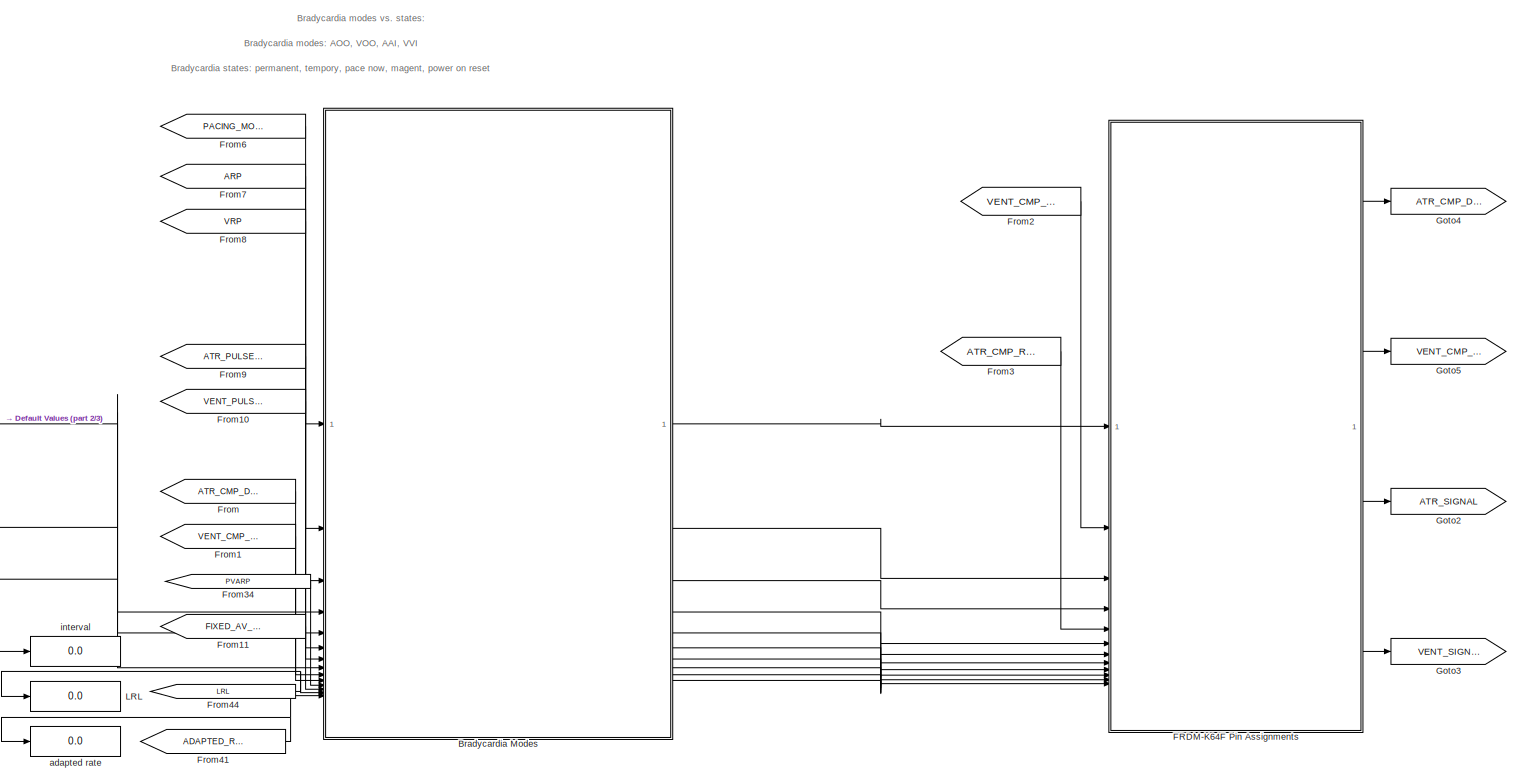
[diagram: root canvas - part 1/3, top right region]
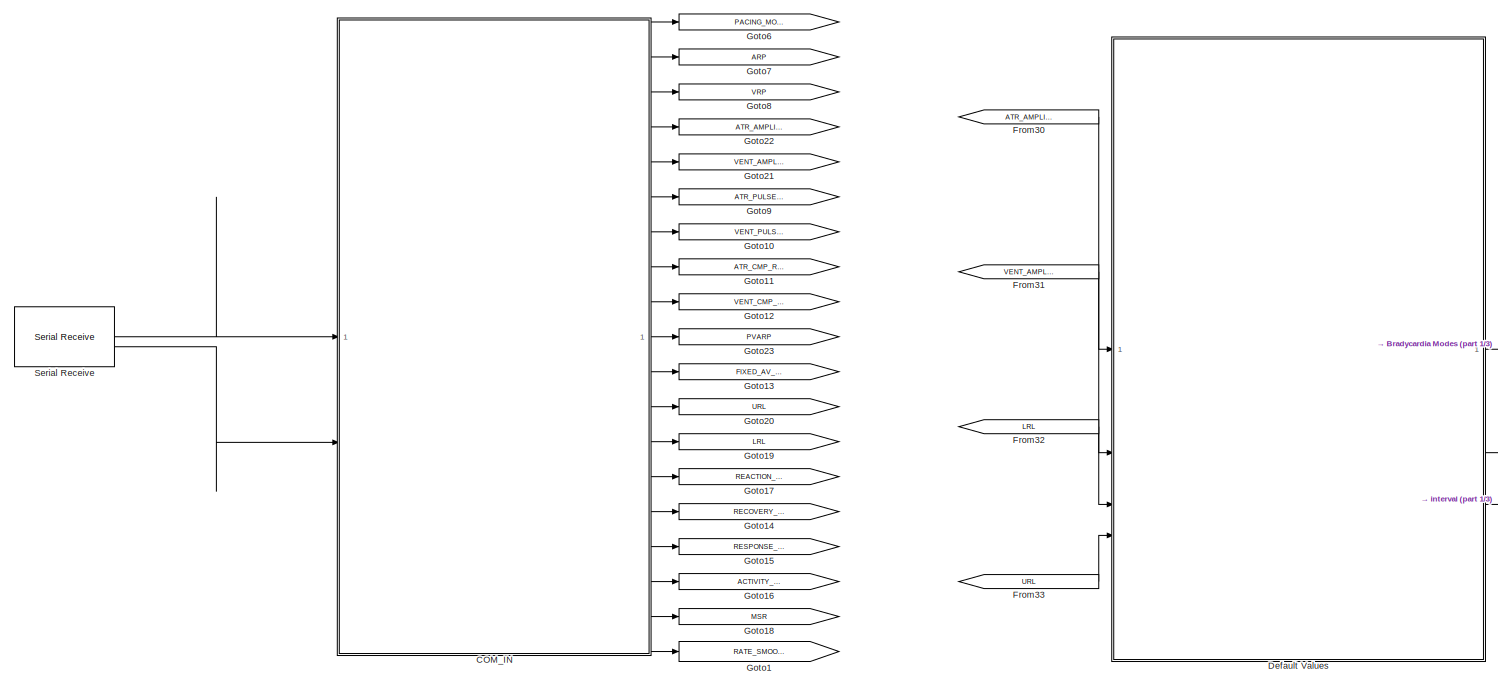
[diagram: root canvas - part 2/3, top left region]
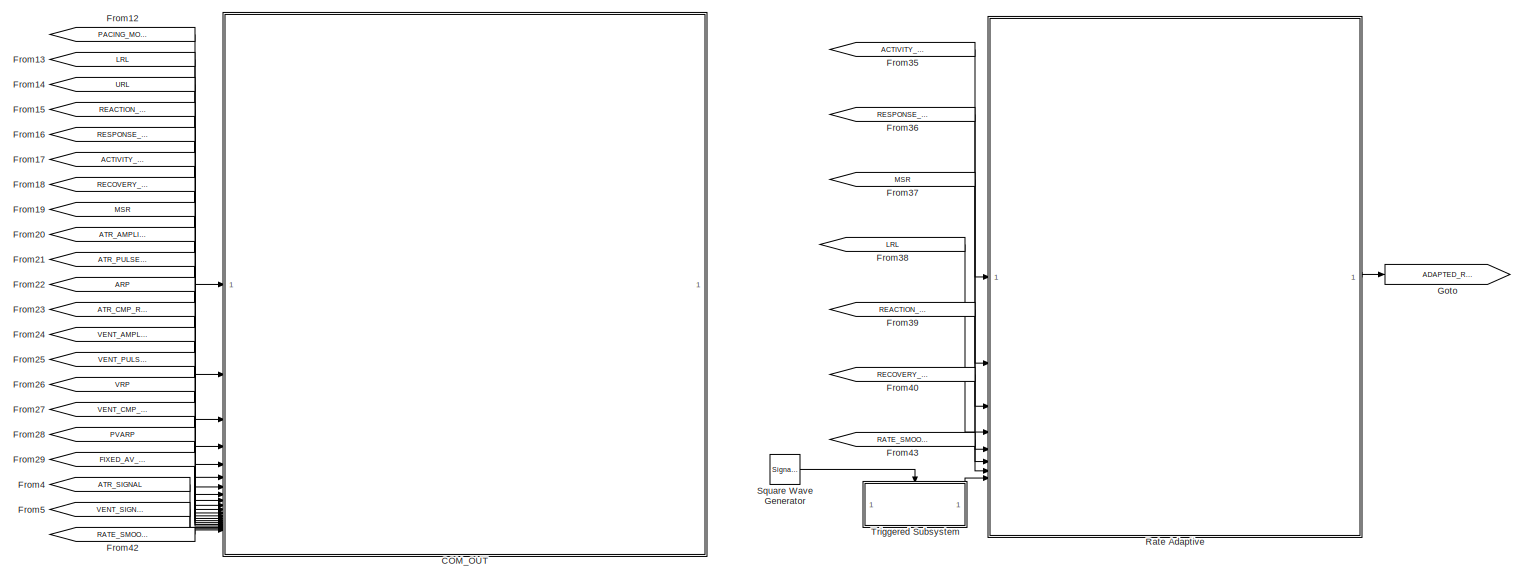
[diagram: root canvas - part 3/3, bottom center region]
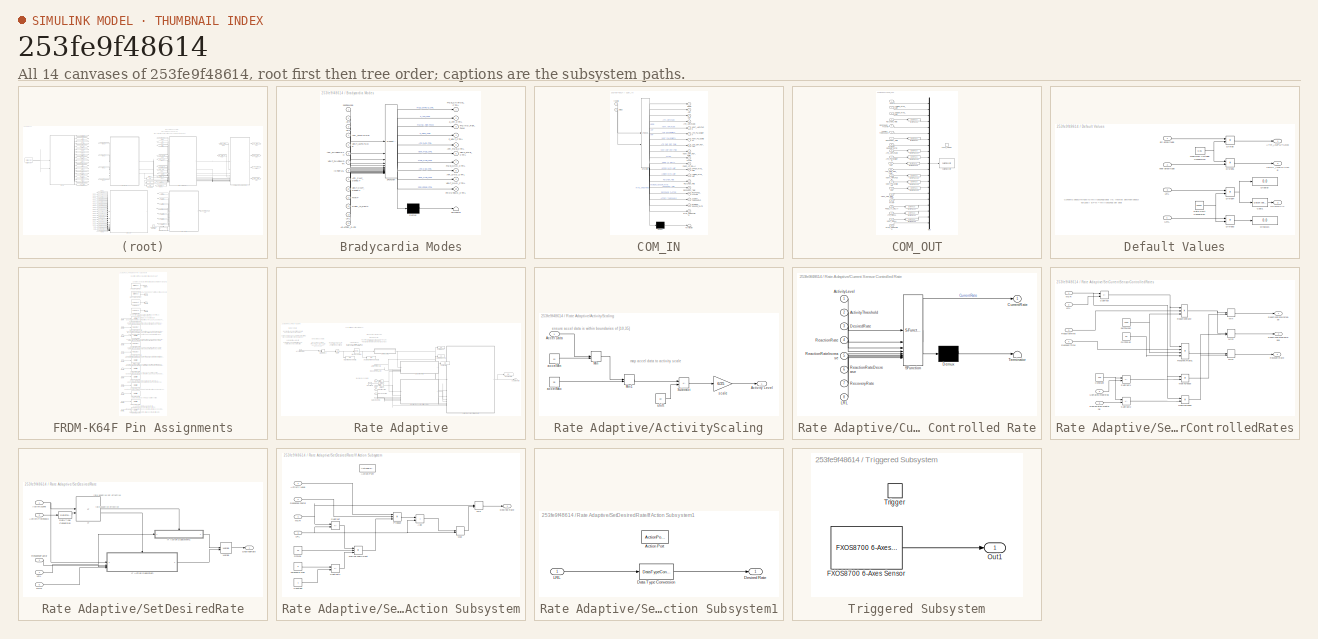
[diagram: thumbnail index - all 14 canvases of the model, root first then tree order]
MODEL slx_253fe9f48614
KIND model
CONFIG AbsTol = auto
CONFIG EnableMultiTasking = on
CONFIG FixedStep = 1e-3
CONFIG MaxStep = auto
CONFIG MinStep = auto
CONFIG RelTol = 1e-3
CONFIG SampleTimeConstraint = Unconstrained
CONFIG SolverName = FixedStepAuto
CONFIG StartTime = 0.0
CONFIG StopTime = 10.0
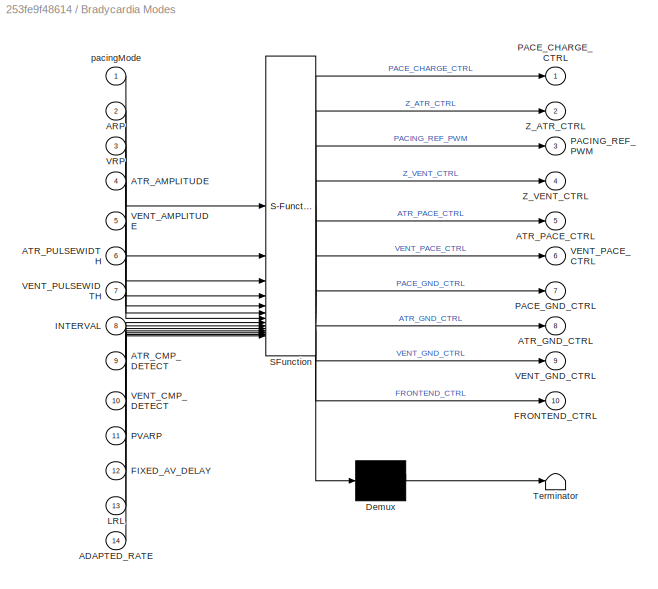
BLOCK [SubSystem] Bradycardia Modes
  ErrorFcn = Stateflow.Translate.translate
  PermitHierarchicalResolution = ExplicitOnly
  SFBlockType = Chart
  TreatAsAtomicUnit = on
BLOCK [Demux] Bradycardia Modes/ Demux 
  Outputs = 1
BLOCK [S-Function] Bradycardia Modes/ SFunction 
  EnableBusSupport = off
  FunctionName = sf_sfun
  PortCounts = [14 11]
  SFcnIsStateOwnerBlock = off
  SFunctionDeploymentMode = off
  Tag = Stateflow S-Function 1
BLOCK [Terminator] Bradycardia Modes/ Terminator 
BLOCK [Inport] Bradycardia Modes/ADAPTED_RATE
  Port = 14
BLOCK [Inport] Bradycardia Modes/ARP
  Port = 2
BLOCK [Inport] Bradycardia Modes/ATR_AMPLITUDE
  Port = 4
BLOCK [Inport] Bradycardia Modes/ATR_CMP_DETECT
  Port = 9
BLOCK [Outport] Bradycardia Modes/ATR_GND_CTRL
  Port = 8
BLOCK [Outport] Bradycardia Modes/ATR_PACE_CTRL
  Port = 5
BLOCK [Inport] Bradycardia Modes/ATR_PULSEWIDTH
  Port = 6
BLOCK [Inport] Bradycardia Modes/FIXED_AV_DELAY
  Port = 12
BLOCK [Outport] Bradycardia Modes/FRONTEND_CTRL
  Port = 10
BLOCK [Inport] Bradycardia Modes/INTERVAL
  Port = 8
BLOCK [Inport] Bradycardia Modes/LRL
  Port = 13
BLOCK [Outport] Bradycardia Modes/PACE_CHARGE_CTRL
BLOCK [Outport] Bradycardia Modes/PACE_GND_CTRL
  Port = 7
BLOCK [Outport] Bradycardia Modes/PACING_REF_PWM
  Port = 3
BLOCK [Inport] Bradycardia Modes/PVARP
  Port = 11
BLOCK [Inport] Bradycardia Modes/VENT_AMPLITUDE
  Port = 5
BLOCK [Inport] Bradycardia Modes/VENT_CMP_DETECT
  Port = 10
BLOCK [Outport] Bradycardia Modes/VENT_GND_CTRL
  Port = 9
BLOCK [Outport] Bradycardia Modes/VENT_PACE_CTRL
  Port = 6
BLOCK [Inport] Bradycardia Modes/VENT_PULSEWIDTH
  Port = 7
BLOCK [Inport] Bradycardia Modes/VRP
  Port = 3
BLOCK [Outport] Bradycardia Modes/Z_ATR_CTRL
  Port = 2
BLOCK [Outport] Bradycardia Modes/Z_VENT_CTRL
  Port = 4
BLOCK [Inport] Bradycardia Modes/pacingMode
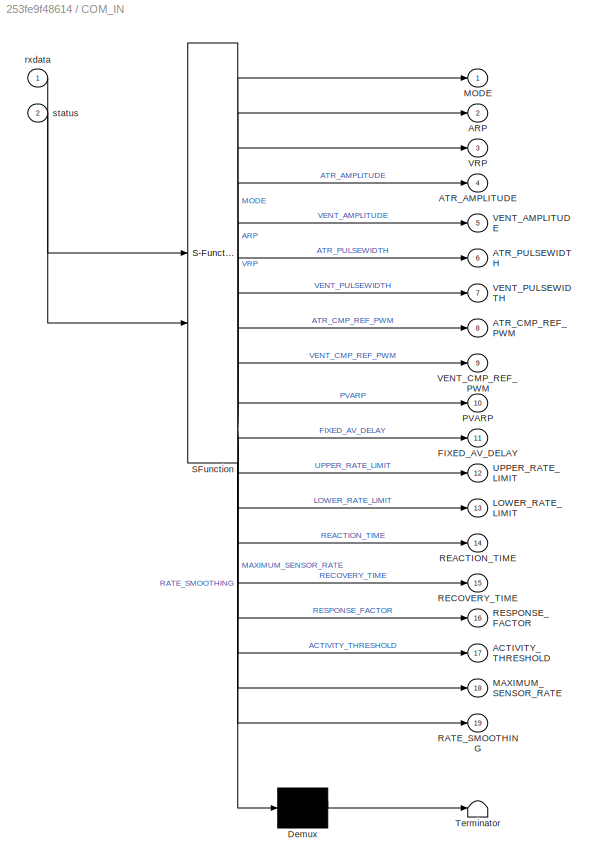
BLOCK [SubSystem] COM_IN
  ErrorFcn = Stateflow.Translate.translate
  PermitHierarchicalResolution = ExplicitOnly
  SFBlockType = Chart
  TreatAsAtomicUnit = on
BLOCK [Demux] COM_IN/ Demux 
  Outputs = 1
BLOCK [S-Function] COM_IN/ SFunction 
  EnableBusSupport = off
  FunctionName = sf_sfun
  PortCounts = [2 20]
  SFcnIsStateOwnerBlock = off
  SFunctionDeploymentMode = off
  Tag = Stateflow S-Function 4
BLOCK [Terminator] COM_IN/ Terminator 
BLOCK [Outport] COM_IN/ACTIVITY_THRESHOLD
  Port = 17
BLOCK [Outport] COM_IN/ARP
  Port = 2
BLOCK [Outport] COM_IN/ATR_AMPLITUDE
  Port = 4
BLOCK [Outport] COM_IN/ATR_CMP_REF_PWM
  Port = 8
BLOCK [Outport] COM_IN/ATR_PULSEWIDTH
  Port = 6
BLOCK [Outport] COM_IN/FIXED_AV_DELAY
  Port = 11
BLOCK [Outport] COM_IN/LOWER_RATE_LIMIT
  Port = 13
BLOCK [Outport] COM_IN/MAXIMUM_SENSOR_RATE
  Port = 18
BLOCK [Outport] COM_IN/MODE
BLOCK [Outport] COM_IN/PVARP
  Port = 10
BLOCK [Outport] COM_IN/RATE_SMOOTHING
  Port = 19
BLOCK [Outport] COM_IN/REACTION_TIME
  Port = 14
BLOCK [Outport] COM_IN/RECOVERY_TIME
  Port = 15
BLOCK [Outport] COM_IN/RESPONSE_FACTOR
  Port = 16
BLOCK [Outport] COM_IN/UPPER_RATE_LIMIT
  Port = 12
BLOCK [Outport] COM_IN/VENT_AMPLITUDE
  Port = 5
BLOCK [Outport] COM_IN/VENT_CMP_REF_PWM
  Port = 9
BLOCK [Outport] COM_IN/VENT_PULSEWIDTH
  Port = 7
BLOCK [Outport] COM_IN/VRP
  Port = 3
BLOCK [Inport] COM_IN/rxdata
BLOCK [Inport] COM_IN/status
  Port = 2
BLOCK [SubSystem] COM_OUT
  TreatAsAtomicUnit = on
BLOCK [Inport] COM_OUT/ACTIVITY_THRESHOLD
  Port = 6
BLOCK [Inport] COM_OUT/ARP
  Port = 11
BLOCK [Inport] COM_OUT/ATR_AMPLITUDE
  Port = 9
BLOCK [Inport] COM_OUT/ATR_CMP_REF_PWM
  Port = 12
BLOCK [Inport] COM_OUT/ATR_PULSEWIDTH
  Port = 10
BLOCK [Inport] COM_OUT/ATR_SIGNAL
  Port = 19
BLOCK [Reference] COM_OUT/Byte Pack1  REF=etargetslib/Byte Pack
  SourceBlock = etargetslib/Byte Pack
  SourceType = Byte pack
BLOCK [Reference] COM_OUT/Byte Pack14  REF=etargetslib/Byte Pack
  SourceBlock = etargetslib/Byte Pack
  SourceType = Byte pack
BLOCK [Reference] COM_OUT/Byte Pack15  REF=etargetslib/Byte Pack
  SourceBlock = etargetslib/Byte Pack
  SourceType = Byte pack
BLOCK [Reference] COM_OUT/Byte Pack16  REF=etargetslib/Byte Pack
  SourceBlock = etargetslib/Byte Pack
  SourceType = Byte pack
BLOCK [Reference] COM_OUT/Byte Pack18  REF=etargetslib/Byte Pack
  SourceBlock = etargetslib/Byte Pack
  SourceType = Byte pack
BLOCK [Reference] COM_OUT/Byte Pack19  REF=etargetslib/Byte Pack
  SourceBlock = etargetslib/Byte Pack
  SourceType = Byte pack
BLOCK [Reference] COM_OUT/Byte Pack2  REF=etargetslib/Byte Pack
  SourceBlock = etargetslib/Byte Pack
  SourceType = Byte pack
BLOCK [Reference] COM_OUT/Byte Pack20  REF=etargetslib/Byte Pack
  SourceBlock = etargetslib/Byte Pack
  SourceType = Byte pack
BLOCK [Reference] COM_OUT/Byte Pack3  REF=etargetslib/Byte Pack
  SourceBlock = etargetslib/Byte Pack
  SourceType = Byte pack
BLOCK [Reference] COM_OUT/Byte Pack4  REF=etargetslib/Byte Pack
  SourceBlock = etargetslib/Byte Pack
  SourceType = Byte pack
BLOCK [Reference] COM_OUT/Byte Pack7  REF=etargetslib/Byte Pack
  SourceBlock = etargetslib/Byte Pack
  SourceType = Byte pack
BLOCK [Inport] COM_OUT/FIXED_AV_DELAY
  Port = 18
BLOCK [Inport] COM_OUT/LOWER_RATE_LIMIT
  Port = 2
BLOCK [Inport] COM_OUT/MAXIMUM_SENSOR_RATE
  Port = 8
BLOCK [Inport] COM_OUT/MODE
BLOCK [Mux] COM_OUT/Mux
  DisplayOption = bar
  Inputs = 21
BLOCK [Inport] COM_OUT/PVARP
  Port = 17
BLOCK [Inport] COM_OUT/RATE_SMOOTHING
  Port = 21
BLOCK [Inport] COM_OUT/REACTION_TIME
  Port = 4
BLOCK [Inport] COM_OUT/RECOVERY_TIME
  Port = 7
BLOCK [Inport] COM_OUT/RESPONSE_FACTOR
  Port = 5
BLOCK [Reference] COM_OUT/Serial Transmit  REF=frdmk64flib/Serial Transmit
  SourceBlock = frdmk64flib/Serial Transmit
  SourceType = freedomk64f.SCIWrite
BLOCK [Inport] COM_OUT/UPPER_RATE_LIMIT
  Port = 3
BLOCK [Inport] COM_OUT/VENT_AMPLITUDE
  Port = 13
BLOCK [Inport] COM_OUT/VENT_CMP_REF_PWM
  Port = 16
BLOCK [Inport] COM_OUT/VENT_PULSEWIDTH
  Port = 14
BLOCK [Inport] COM_OUT/VENT_SIGNAL
  Port = 20
BLOCK [Inport] COM_OUT/VRP
  Port = 15
BLOCK [TriggerPort] COM_OUT/send_params
  FunctionName = send_params
  IsSimulinkFunction = on
  StatesWhenEnabling = held
  TriggerType = function-call
  VariantControl = Variant
BLOCK [SubSystem] Default Values
BLOCK [Outport] Default Values/ATR_AMPLITUDE
BLOCK [DataTypeConversion] Default Values/Cast1
  LockScale = on
  OutDataTypeStr = uint16
  RndMeth = Floor
  SaturateOnIntegerOverflow = off
BLOCK [Display] Default Values/Display
  Decimation = 1
BLOCK [Display] Default Values/Display1
  Decimation = 1
BLOCK [Product] Default Values/Divide
  Inputs = */
BLOCK [Product] Default Values/Divide1
  Inputs = /*
BLOCK [Product] Default Values/Divide3
  Inputs = */
BLOCK [Product] Default Values/Divide4
  Inputs = /*
BLOCK [Outport] Default Values/INTERVAL
  Port = 3
BLOCK [Inport] Default Values/LRL
  Port = 3
BLOCK [Constant] Default Values/Maximum Voltage Conversion
  Value = 0.05
BLOCK [Constant] Default Values/Rate Limit Conversion
  Value = 60000
BLOCK [Inport] Default Values/URL
  Port = 4
BLOCK [Outport] Default Values/VENT_AMPLITUDE
  Port = 2
BLOCK [Inport] Default Values/atr-amplitude
BLOCK [Inport] Default Values/vent-amplitude
  Port = 2
BLOCK [SubSystem] FRDM-K64F Pin Assignments
BLOCK [Reference] FRDM-K64F Pin Assignments/ATR_CMP_DETECT  REF=frdmk64flib/Digital Read
  SourceBlock = frdmk64flib/Digital Read
  SourceType = freedomk64f.DigitalRead
BLOCK [Reference] FRDM-K64F Pin Assignments/ATR_CMP_REF_PWM  REF=frdmk64flib/PWM Output
  SourceBlock = frdmk64flib/PWM Output
  SourceType = freedomk64f.PWMOutput
BLOCK [Reference] FRDM-K64F Pin Assignments/ATR_GND_CTRL  REF=frdmk64flib/Digital Write
  SourceBlock = frdmk64flib/Digital Write
  SourceType = freedomk64f.DigitalWrite
BLOCK [Reference] FRDM-K64F Pin Assignments/ATR_PACE_CTRL  REF=frdmk64flib/Digital Write
  SourceBlock = frdmk64flib/Digital Write
  SourceType = freedomk64f.DigitalWrite
BLOCK [Reference] FRDM-K64F Pin Assignments/Analog Input  REF=frdmk64flib/Analog Input
  SourceBlock = frdmk64flib/Analog Input
  SourceType = freedomk64f.AnalogInput
BLOCK [Reference] FRDM-K64F Pin Assignments/Analog Input1  REF=frdmk64flib/Analog Input
  SourceBlock = frdmk64flib/Analog Input
  SourceType = freedomk64f.AnalogInput
BLOCK [Reference] FRDM-K64F Pin Assignments/FRONTEND_CTRL  REF=frdmk64flib/Digital Write
  SourceBlock = frdmk64flib/Digital Write
  SourceType = freedomk64f.DigitalWrite
BLOCK [Inport] FRDM-K64F Pin Assignments/Inport
BLOCK [Inport] FRDM-K64F Pin Assignments/Inport1
  Port = 2
BLOCK [Inport] FRDM-K64F Pin Assignments/Inport10
  Port = 11
BLOCK [Inport] FRDM-K64F Pin Assignments/Inport11
  Port = 12
BLOCK [Inport] FRDM-K64F Pin Assignments/Inport2
  Port = 3
BLOCK [Inport] FRDM-K64F Pin Assignments/Inport3
  Port = 4
BLOCK [Inport] FRDM-K64F Pin Assignments/Inport4
  Port = 5
BLOCK [Inport] FRDM-K64F Pin Assignments/Inport5
  Port = 6
BLOCK [Inport] FRDM-K64F Pin Assignments/Inport6
  Port = 7
BLOCK [Inport] FRDM-K64F Pin Assignments/Inport7
  Port = 8
BLOCK [Inport] FRDM-K64F Pin Assignments/Inport8
  Port = 9
BLOCK [Inport] FRDM-K64F Pin Assignments/Inport9
  Port = 10
BLOCK [Outport] FRDM-K64F Pin Assignments/Outport
BLOCK [Outport] FRDM-K64F Pin Assignments/Outport1
  Port = 2
BLOCK [Outport] FRDM-K64F Pin Assignments/Outport2
  Port = 3
BLOCK [Outport] FRDM-K64F Pin Assignments/Outport3
  Port = 4
BLOCK [Reference] FRDM-K64F Pin Assignments/PACE_CHARGE_CTRL  REF=frdmk64flib/Digital Write
  SourceBlock = frdmk64flib/Digital Write
  SourceType = freedomk64f.DigitalWrite
BLOCK [Reference] FRDM-K64F Pin Assignments/PACE_GND_CTRL  REF=frdmk64flib/Digital Write
  SourceBlock = frdmk64flib/Digital Write
  SourceType = freedomk64f.DigitalWrite
BLOCK [Reference] FRDM-K64F Pin Assignments/PACING_REF_PWM  REF=frdmk64flib/PWM Output
  SourceBlock = frdmk64flib/PWM Output
  SourceType = freedomk64f.PWMOutput
BLOCK [Reference] FRDM-K64F Pin Assignments/VENT_CMP_DETECT  REF=frdmk64flib/Digital Read
  SourceBlock = frdmk64flib/Digital Read
  SourceType = freedomk64f.DigitalRead
BLOCK [Reference] FRDM-K64F Pin Assignments/VENT_CMP_REF_PWM  REF=frdmk64flib/PWM Output
  SourceBlock = frdmk64flib/PWM Output
  SourceType = freedomk64f.PWMOutput
BLOCK [Reference] FRDM-K64F Pin Assignments/VENT_GND_CTRL  REF=frdmk64flib/Digital Write
  SourceBlock = frdmk64flib/Digital Write
  SourceType = freedomk64f.DigitalWrite
BLOCK [Reference] FRDM-K64F Pin Assignments/VENT_PACE_CTRL  REF=frdmk64flib/Digital Write
  SourceBlock = frdmk64flib/Digital Write
  SourceType = freedomk64f.DigitalWrite
BLOCK [Reference] FRDM-K64F Pin Assignments/Z_ATR_CTRL  REF=frdmk64flib/Digital Write
  SourceBlock = frdmk64flib/Digital Write
  SourceType = freedomk64f.DigitalWrite
BLOCK [Reference] FRDM-K64F Pin Assignments/Z_VENT_CTRL  REF=frdmk64flib/Digital Write
  SourceBlock = frdmk64flib/Digital Write
  SourceType = freedomk64f.DigitalWrite
BLOCK [From] From
  GotoTag = ATR_CMP_DETECT
BLOCK [From] From1
  GotoTag = VENT_CMP_DETECT
BLOCK [From] From10
  GotoTag = VENT_PULSEWIDTH
BLOCK [From] From11
  GotoTag = FIXED_AV_DELAY
BLOCK [From] From12
  GotoTag = PACING_MODE
BLOCK [From] From13
  GotoTag = LRL
BLOCK [From] From14
  GotoTag = URL
BLOCK [From] From15
  GotoTag = REACTION_TIME
BLOCK [From] From16
  GotoTag = RESPONSE_FACTOR
BLOCK [From] From17
  GotoTag = ACTIVITY_THRESHOLD
BLOCK [From] From18
  GotoTag = RECOVERY_TIME
BLOCK [From] From19
  GotoTag = MSR
BLOCK [From] From2
  GotoTag = VENT_CMP_REF_PWM
BLOCK [From] From20
  GotoTag = ATR_AMPLITUDE
BLOCK [From] From21
  GotoTag = ATR_PULSEWIDTH
BLOCK [From] From22
  GotoTag = ARP
BLOCK [From] From23
  GotoTag = ATR_CMP_REF_PWM
BLOCK [From] From24
  GotoTag = VENT_AMPLITUDE
BLOCK [From] From25
  GotoTag = VENT_PULSEWIDTH
BLOCK [From] From26
  GotoTag = VRP
BLOCK [From] From27
  GotoTag = VENT_CMP_REF_PWM
BLOCK [From] From28
  GotoTag = PVARP
BLOCK [From] From29
  GotoTag = FIXED_AV_DELAY
BLOCK [From] From3
  GotoTag = ATR_CMP_REF_PWM
BLOCK [From] From30
  GotoTag = ATR_AMPLITUDE
BLOCK [From] From31
  GotoTag = VENT_AMPLITUDE
BLOCK [From] From32
  GotoTag = LRL
BLOCK [From] From33
  GotoTag = URL
BLOCK [From] From34
  GotoTag = PVARP
BLOCK [From] From35
  GotoTag = ACTIVITY_THRESHOLD
BLOCK [From] From36
  GotoTag = RESPONSE_FACTOR
BLOCK [From] From37
  GotoTag = MSR
BLOCK [From] From38
  GotoTag = LRL
BLOCK [From] From39
  GotoTag = REACTION_TIME
BLOCK [From] From4
  GotoTag = ATR_SIGNAL
BLOCK [From] From40
  GotoTag = RECOVERY_TIME
BLOCK [From] From41
  GotoTag = ADAPTED_RATE
BLOCK [From] From42
  GotoTag = RATE_SMOOTHING
BLOCK [From] From43
  GotoTag = RATE_SMOOTHING
BLOCK [From] From44
  GotoTag = LRL
BLOCK [From] From5
  GotoTag = VENT_SIGNAL
BLOCK [From] From6
  GotoTag = PACING_MODE
BLOCK [From] From7
  GotoTag = ARP
BLOCK [From] From8
  GotoTag = VRP
BLOCK [From] From9
  GotoTag = ATR_PULSEWIDTH
BLOCK [Goto] Goto
  GotoTag = ADAPTED_RATE
BLOCK [Goto] Goto1
  GotoTag = RATE_SMOOTHING
BLOCK [Goto] Goto10
  GotoTag = VENT_PULSEWIDTH
BLOCK [Goto] Goto11
  GotoTag = ATR_CMP_REF_PWM
BLOCK [Goto] Goto12
  GotoTag = VENT_CMP_REF_PWM
BLOCK [Goto] Goto13
  GotoTag = FIXED_AV_DELAY
BLOCK [Goto] Goto14
  GotoTag = RECOVERY_TIME
BLOCK [Goto] Goto15
  GotoTag = RESPONSE_FACTOR
BLOCK [Goto] Goto16
  GotoTag = ACTIVITY_THRESHOLD
BLOCK [Goto] Goto17
  GotoTag = REACTION_TIME
BLOCK [Goto] Goto18
  GotoTag = MSR
BLOCK [Goto] Goto19
  GotoTag = LRL
BLOCK [Goto] Goto2
  GotoTag = ATR_SIGNAL
BLOCK [Goto] Goto20
  GotoTag = URL
BLOCK [Goto] Goto21
  GotoTag = VENT_AMPLITUDE
BLOCK [Goto] Goto22
  GotoTag = ATR_AMPLITUDE
BLOCK [Goto] Goto23
  GotoTag = PVARP
BLOCK [Goto] Goto3
  GotoTag = VENT_SIGNAL
BLOCK [Goto] Goto4
  GotoTag = ATR_CMP_DETECT
BLOCK [Goto] Goto5
  GotoTag = VENT_CMP_DETECT
BLOCK [Goto] Goto6
  GotoTag = PACING_MODE
BLOCK [Goto] Goto7
  GotoTag = ARP
BLOCK [Goto] Goto8
  GotoTag = VRP
BLOCK [Goto] Goto9
  GotoTag = ATR_PULSEWIDTH
BLOCK [Display] LRL
  Decimation = 1
BLOCK [SubSystem] Rate Adaptive
BLOCK [Inport] Rate Adaptive/Accelerometer
  Port = 8
BLOCK [Inport] Rate Adaptive/Activity Threshold
BLOCK [SubSystem] Rate Adaptive/ActivityScaling
BLOCK [Inport] Rate Adaptive/ActivityScaling/Accel Data
BLOCK [Outport] Rate Adaptive/ActivityScaling/Activity Level
BLOCK [MinMax] Rate Adaptive/ActivityScaling/Min
  Function = max
  Inputs = 2
BLOCK [MinMax] Rate Adaptive/ActivityScaling/Min1
  Inputs = 2
BLOCK [Sum] Rate Adaptive/ActivityScaling/Subtract
  IconShape = rectangular
  Inputs = +-
BLOCK [Constant] Rate Adaptive/ActivityScaling/accelMax
  Value = 35
BLOCK [Constant] Rate Adaptive/ActivityScaling/accelMin
  Value = 10
BLOCK [Gain] Rate Adaptive/ActivityScaling/scale
  Gain = 6/25
BLOCK [Constant] Rate Adaptive/ActivityScaling/shift
  Value = 10
BLOCK [Outport] Rate Adaptive/Adapted Rate
BLOCK [Constant] Rate Adaptive/Constant1
  Value = 60000
BLOCK [SubSystem] Rate Adaptive/Current Sensor Controlled Rate
  ErrorFcn = Stateflow.Translate.translate
  PermitHierarchicalResolution = ExplicitOnly
  SFBlockType = Chart
  TreatAsAtomicUnit = on
BLOCK [Demux] Rate Adaptive/Current Sensor Controlled Rate/ Demux 
  Outputs = 1
BLOCK [S-Function] Rate Adaptive/Current Sensor Controlled Rate/ SFunction 
  EnableBusSupport = off
  FunctionName = sf_sfun
  PortCounts = [8 2]
  SFcnIsStateOwnerBlock = off
  SFunctionDeploymentMode = off
  Tag = Stateflow S-Function 2
BLOCK [Terminator] Rate Adaptive/Current Sensor Controlled Rate/ Terminator 
BLOCK [Inport] Rate Adaptive/Current Sensor Controlled Rate/ActivityLevel
BLOCK [Inport] Rate Adaptive/Current Sensor Controlled Rate/ActivityThreshold
  Port = 2
BLOCK [Outport] Rate Adaptive/Current Sensor Controlled Rate/CurrentRate
BLOCK [Inport] Rate Adaptive/Current Sensor Controlled Rate/DesiredRate
  Port = 3
BLOCK [Inport] Rate Adaptive/Current Sensor Controlled Rate/LRL
  Port = 8
BLOCK [Inport] Rate Adaptive/Current Sensor Controlled Rate/ReactionRate
  Port = 4
BLOCK [Inport] Rate Adaptive/Current Sensor Controlled Rate/ReactionRateDecrease
  Port = 6
BLOCK [Inport] Rate Adaptive/Current Sensor Controlled Rate/ReactionRateIncrease
  Port = 5
BLOCK [Inport] Rate Adaptive/Current Sensor Controlled Rate/RecoveryRate
  Port = 7
BLOCK [Product] Rate Adaptive/Divide1
  Inputs = /*
BLOCK [Product] Rate Adaptive/Divide2
  Inputs = */
BLOCK [DotProduct] Rate Adaptive/Dot Product
  OutDataTypeStr = Inherit: Inherit via internal rule
BLOCK [Inport] Rate Adaptive/LRL
  Port = 4
BLOCK [Inport] Rate Adaptive/MSR
  Port = 3
BLOCK [Reference] Rate Adaptive/Moving Average  REF=dspstat3/Moving
Average
  SourceBlock = dspstat3/Moving\nAverage
  SourceType = dsp.simulink.MovingAverage
BLOCK [Inport] Rate Adaptive/Rate Smoothing
  Port = 7
BLOCK [Inport] Rate Adaptive/Reaction Time
  Port = 5
BLOCK [Inport] Rate Adaptive/Recovery Time
  Port = 6
BLOCK [Inport] Rate Adaptive/Response Factor
  Port = 2
BLOCK [SubSystem] Rate Adaptive/SetCurrentSensorControlledRates
BLOCK [Constant] Rate Adaptive/SetCurrentSensorControlledRates/Constant
  Value = 100
BLOCK [Inport] Rate Adaptive/SetCurrentSensorControlledRates/DownRateSmoothing
  Port = 6
BLOCK [Inport] Rate Adaptive/SetCurrentSensorControlledRates/LRL
  Port = 2
BLOCK [Inport] Rate Adaptive/SetCurrentSensorControlledRates/MSR
BLOCK [Product] Rate Adaptive/SetCurrentSensorControlledRates/MaxDecrease
BLOCK [Product] Rate Adaptive/SetCurrentSensorControlledRates/MaxIncrease
BLOCK [MinMax] Rate Adaptive/SetCurrentSensorControlledRates/Min
  Inputs = 2
BLOCK [MinMax] Rate Adaptive/SetCurrentSensorControlledRates/Min1
  Inputs = 2
BLOCK [MinMax] Rate Adaptive/SetCurrentSensorControlledRates/Min2
  Inputs = 2
BLOCK [Product] Rate Adaptive/SetCurrentSensorControlledRates/ReactionRate
  Inputs = *//
BLOCK [Outport] Rate Adaptive/SetCurrentSensorControlledRates/ReactionRateDecrease
  Port = 2
BLOCK [Outport] Rate Adaptive/SetCurrentSensorControlledRates/ReactionRateIncrease
BLOCK [Inport] Rate Adaptive/SetCurrentSensorControlledRates/ReactionTime
  Port = 3
BLOCK [Outport] Rate Adaptive/SetCurrentSensorControlledRates/RecoveryRate
  Port = 3
BLOCK [Product] Rate Adaptive/SetCurrentSensorControlledRates/RecoveryRate1
  Inputs = *///
BLOCK [Inport] Rate Adaptive/SetCurrentSensorControlledRates/RecoveryTime
  Port = 4
BLOCK [Sum] Rate Adaptive/SetCurrentSensorControlledRates/Subtract
  IconShape = rectangular
  Inputs = +-
BLOCK [Sum] Rate Adaptive/SetCurrentSensorControlledRates/Subtract1
  IconShape = rectangular
  Inputs = +-
BLOCK [Sum] Rate Adaptive/SetCurrentSensorControlledRates/Subtract2
  IconShape = rectangular
  Inputs = +-
BLOCK [Inport] Rate Adaptive/SetCurrentSensorControlledRates/UpRateSmoothing
  Port = 5
BLOCK [Constant] Rate Adaptive/SetCurrentSensorControlledRates/minToSec
  Value = 60
BLOCK [Constant] Rate Adaptive/SetCurrentSensorControlledRates/secToMsec
  Value = 1000
BLOCK [SubSystem] Rate Adaptive/SetDesiredRate
BLOCK [Inport] Rate Adaptive/SetDesiredRate/ActivityLevel
BLOCK [Inport] Rate Adaptive/SetDesiredRate/ActivityThreshold
  Port = 2
BLOCK [DataTypeConversion] Rate Adaptive/SetDesiredRate/Data Type Conversion
  OutDataTypeStr = double
  RndMeth = Floor
  SaturateOnIntegerOverflow = off
BLOCK [Outport] Rate Adaptive/SetDesiredRate/DesiredRate
BLOCK [If] Rate Adaptive/SetDesiredRate/If
  IfExpression = u1 <= u2
  NumInputs = 2
BLOCK [SubSystem] Rate Adaptive/SetDesiredRate/If Action Subsystem
  TreatAsAtomicUnit = on
BLOCK [ActionPort] Rate Adaptive/SetDesiredRate/If Action Subsystem/Action Port
  ActionPortLabel = else
BLOCK [Inport] Rate Adaptive/SetDesiredRate/If Action Subsystem/Activity Level
BLOCK [Sum] Rate Adaptive/SetDesiredRate/If Action Subsystem/Add
  IconShape = rectangular
BLOCK [Constant] Rate Adaptive/SetDesiredRate/If Action Subsystem/Constant
BLOCK [Outport] Rate Adaptive/SetDesiredRate/If Action Subsystem/Desired Rate
BLOCK [Inport] Rate Adaptive/SetDesiredRate/If Action Subsystem/LRL
  Port = 3
BLOCK [Inport] Rate Adaptive/SetDesiredRate/If Action Subsystem/MSR
  Port = 4
BLOCK [MinMax] Rate Adaptive/SetDesiredRate/If Action Subsystem/Max
  Function = max
  Inputs = 2
BLOCK [MinMax] Rate Adaptive/SetDesiredRate/If Action Subsystem/Min
  Inputs = 2
BLOCK [Product] Rate Adaptive/SetDesiredRate/If Action Subsystem/Product
  Inputs = 3
BLOCK [Constant] Rate Adaptive/SetDesiredRate/If Action Subsystem/RFMax
  Value = 16
BLOCK [Inport] Rate Adaptive/SetDesiredRate/If Action Subsystem/Response Factor
  Port = 2
BLOCK [Sum] Rate Adaptive/SetDesiredRate/If Action Subsystem/Subtract
  IconShape = rectangular
  Inputs = +-
BLOCK [Sum] Rate Adaptive/SetDesiredRate/If Action Subsystem/Subtract1
  IconShape = rectangular
  Inputs = +-
BLOCK [Constant] Rate Adaptive/SetDesiredRate/If Action Subsystem/Threshold Max
  Value = 6
BLOCK [Product] Rate Adaptive/SetDesiredRate/If Action Subsystem/scaling coefficient
  Inputs = *//
BLOCK [SubSystem] Rate Adaptive/SetDesiredRate/If Action Subsystem1
  TreatAsAtomicUnit = on
BLOCK [ActionPort] Rate Adaptive/SetDesiredRate/If Action Subsystem1/Action Port
  ActionPortLabel = if(u1 <= u2)
BLOCK [DataTypeConversion] Rate Adaptive/SetDesiredRate/If Action Subsystem1/Data Type Conversion
  OutDataTypeStr = double
  RndMeth = Floor
  SaturateOnIntegerOverflow = off
BLOCK [Outport] Rate Adaptive/SetDesiredRate/If Action Subsystem1/Desired Rate
BLOCK [Inport] Rate Adaptive/SetDesiredRate/If Action Subsystem1/LRL
BLOCK [Inport] Rate Adaptive/SetDesiredRate/LRL
  Port = 4
BLOCK [Inport] Rate Adaptive/SetDesiredRate/MSR
  Port = 5
BLOCK [Merge] Rate Adaptive/SetDesiredRate/Merge
BLOCK [Inport] Rate Adaptive/SetDesiredRate/ResponseFactor
  Port = 3
BLOCK [Sqrt] Rate Adaptive/Sqrt
BLOCK [Display] Rate Adaptive/activity level
  Decimation = 1
BLOCK [Display] Rate Adaptive/activity threshold
  Decimation = 1
BLOCK [Display] Rate Adaptive/adapted rate
  Decimation = 1
BLOCK [Display] Rate Adaptive/avg magnitude accel data
  Decimation = 1
BLOCK [Display] Rate Adaptive/desired rate
  Decimation = 1
BLOCK [Display] Rate Adaptive/magnitude accel data
  Decimation = 1
BLOCK [Reference] Serial Receive  REF=frdmk64flib/Serial Receive
  SourceBlock = frdmk64flib/Serial Receive
  SourceType = freedomk64f.SCIRead
BLOCK [SignalGenerator] Square Wave Generator
  Frequency = 1000
  WaveForm = square
BLOCK [SubSystem] Triggered Subsystem
  TreatAsAtomicUnit = on
BLOCK [Reference] Triggered Subsystem/FXOS8700 6-Axes Sensor  REF=frdmk64flib/FXOS8700 6-Axes Sensor
  SourceBlock = frdmk64flib/FXOS8700 6-Axes Sensor
  SourceType = freedomk64f.fxos8700
BLOCK [Outport] Triggered Subsystem/Out1
BLOCK [TriggerPort] Triggered Subsystem/Trigger
  StatesWhenEnabling = held
  VariantControl = Variant
BLOCK [Display] adapted rate
  Decimation = 1
BLOCK [Display] interval
  Decimation = 1
ANNOTATION (root): Bradycardia modes vs. states:
ANNOTATION (root): Bradycardia modes: AOO, VOO, AAI, VVI
ANNOTATION (root): Bradycardia states: permanent, tempory, pace now, magent, power on reset
ANNOTATION Default Values: Converts beats/minute to milliseconds/beat (ie. interval between beats) 60/1000 / BPM = milliseconds per beat
ANNOTATION FRDM-K64F Pin Assignments: This control allows the impedance circuit to be connected to the ring electrode of the atrium. It is used to analyze the impedance of the atrial electrode and the electrical connection between the atrial electrodes and the atrium itself. The output of this circuit is found at the Z SIGNAL pin. More information regarding lead impedances is mentioned in Section 4 of this document.
ANNOTATION FRDM-K64F Pin Assignments: Descriptions from "Pacemaker Microntrolled Shield (T1.4).pdf"
ANNOTATION FRDM-K64F Pin Assignments: In order to establish a threshold for when the ventricular actionpotential should be sensed, this pin uses PWM to charge a capacitor that will sustain a constant voltage for comparison. Note that the capacitor voltage is linearly proportional tothe Duty Cycle of the PWM input. Use default PWM frequency.
ANNOTATION FRDM-K64F Pin Assignments: Same functionality as in ATR CMP DETECT but for the ventricle sensing signal (includes 5mV hysteresis).
ANNOTATION FRDM-K64F Pin Assignments: Same functionality as in ATR PACE CTRL but for the ventricle. NEVER allow this output signal to be set to HIGH if PACE CHARGE CTRL is HIGH because then the patient’sventricle may be directly connected to the PWM signal!
ANNOTATION FRDM-K64F Pin Assignments: Same functionality as in ATR RING OUT but for the ventricle.
ANNOTATION FRDM-K64F Pin Assignments: Same functionality as in VENT CMP REF PWM but for theatrial action potential. Note that the capacitor voltage is linearly proportional tothe Duty Cycle of the PWM input. Use default PWM frequency.
ANNOTATION FRDM-K64F Pin Assignments: This control allows the impedance circuit to be connectedto the ring electrode of the ventricle. Its use is identical to Z ATR CTRL but for the ventricle. More information regarding lead impedances is mentionedin Section 4 of this document.
ANNOTATION FRDM-K64F Pin Assignments: To allow current to flow from the ring to the tip in either theatrium or the ventricle this pin must be HIGH since it controls the switch directly following the tip. Note: Once this pin is activated along with either ... PACE CTRL pins, the charge will flow through the switch and accumulate inthe blocking capacitor (C21).
ANNOTATION FRDM-K64F Pin Assignments: Used in the sensing circuitry of the atrium. Outputs ON (HIGH) when signal voltage is higher than threshold voltage and OFF (LOW) otherwise (includes 5mV hysteresis).
ANNOTATION FRDM-K64F Pin Assignments: Used to activate the sensing circuitry. If ON (HIGH) →Sensing circuitry will output heart signal. If OFF (LOW) →Sensing circuitry is disconnected from patient(Green Connectors) and will output nothing. Note: This switch controls both the atrial and ventricalcircuits. It is up to the programmer to only record the data theydesire since both will be activated.
ANNOTATION FRDM-K64F Pin Assignments: Used to charge the primary capacitor (C22) of the pacing circuit.The PWM voltage output by this pin saturates to 0-5V and will charge C22 is PACE CHARGE CTRL is HIGH. Note that the capacitor voltage is linearly proportional tothe Duty Cycle of the PWM input. Use default PWM frequency
ANNOTATION FRDM-K64F Pin Assignments: Used to connect the ATR RING OUT to GND. This functionality is used when discharging the blocking capacitor through theatrium to allow no charge buildup.
ANNOTATION FRDM-K64F Pin Assignments: Used to discharge the primary capacitor through the atrium.Current flows through the switch if set to HIGH. If LOW there is no current flow. Pay attention to the direction at which currentflows through the electrode. NEVER allow this output signal to be set to HIGH if PACE CHARGE CTRL is HIGH because then the patient’s atrium may be directly connected to the PWM signal!
ANNOTATION FRDM-K64F Pin Assignments: Used to start and stop the charging of the primary capacitor(C22). If ON (HIGH) → PWM charges C22 If OFF (LOW) → PWM disconnected from circuit NEVER allow this signal to be set to HIGH if eitherATR PACE CTRL and/or VENT PACE CTRL are HIGH because then the patient may be directly connected to the PWM signal!
ANNOTATION Rate Adaptive: accel block inside subsystem to enforce timing of accelerometer function to be aligned
ANNOTATION Rate Adaptive: accel data = [1x3] vector for x,y,z data in double values of g=9.8m/s^2
ANNOTATION Rate Adaptive: convert raw accel to activity level
ANNOTATION Rate Adaptive: demux raw accel data
ANNOTATION Rate Adaptive: magnitude of 3D vector: |A| = sqrt (x^2 + y^2 + z^2) = sqrt (dot product of itself)
ANNOTATION Rate Adaptive: mapped to scale of choice
ANNOTATION Rate Adaptive: mapping scale: incoming signal expected values = [10, 35] activity thresholds = [0,6] = {v-low, low, med-low, med, med-high, high, v-high} activity level --> signal shifted by -10, then scaled by x 6/25, now directly corresponding to the [0,6] range
ANNOTATION Rate Adaptive: maximum sensing rate
ANNOTATION Rate Adaptive: raw accel data
ANNOTATION Rate Adaptive: sampling time = -1 (inherit) so that block's sampling time does not affect model's sampling time
ANNOTATION Rate Adaptive: smooth signal
ANNOTATION Rate Adaptive: take dot product of itself: A * B = AxBx + AyBy + AzBz A * A = Ax^2 + Ay^2 + Az^2 = x^2 + y^2 + z^2
ANNOTATION Rate Adaptive: to smooth short term fluctuations while capturing long term trends
ANNOTATION Rate Adaptive/ActivityScaling: ensure accel data is within boundaries of [10,35]
ANNOTATION Rate Adaptive/ActivityScaling: map accel data to activity scale
ANNOTATION Rate Adaptive/SetDesiredRate: rate adaptive effective
ANNOTATION Rate Adaptive/SetDesiredRate: rate adaptive not effective
LINE Bradycardia Modes:1 -> FRDM-K64F Pin Assignments:1
LINE Bradycardia Modes:10 -> FRDM-K64F Pin Assignments:12
LINE Bradycardia Modes:2 -> FRDM-K64F Pin Assignments:3
LINE Bradycardia Modes:3 -> FRDM-K64F Pin Assignments:4
LINE Bradycardia Modes:4 -> FRDM-K64F Pin Assignments:6
LINE Bradycardia Modes:5 -> FRDM-K64F Pin Assignments:7
LINE Bradycardia Modes:6 -> FRDM-K64F Pin Assignments:8
LINE Bradycardia Modes:7 -> FRDM-K64F Pin Assignments:9
LINE Bradycardia Modes:8 -> FRDM-K64F Pin Assignments:10
LINE Bradycardia Modes:9 -> FRDM-K64F Pin Assignments:11
LINE COM_IN:1 -> Goto6:1
LINE COM_IN:10 -> Goto23:1
LINE COM_IN:11 -> Goto13:1
LINE COM_IN:12 -> Goto20:1
LINE COM_IN:13 -> Goto19:1
LINE COM_IN:14 -> Goto17:1
LINE COM_IN:15 -> Goto14:1
LINE COM_IN:16 -> Goto15:1
LINE COM_IN:17 -> Goto16:1
LINE COM_IN:18 -> Goto18:1
LINE COM_IN:19 -> Goto1:1
LINE COM_IN:2 -> Goto7:1
LINE COM_IN:3 -> Goto8:1
LINE COM_IN:4 -> Goto22:1
LINE COM_IN:5 -> Goto21:1
LINE COM_IN:6 -> Goto9:1
LINE COM_IN:7 -> Goto10:1
LINE COM_IN:8 -> Goto11:1
LINE COM_IN:9 -> Goto12:1
LINE COM_OUT/ACTIVITY_THRESHOLD:1 -> COM_OUT/Mux:6
LINE COM_OUT/ARP:1 -> COM_OUT/Byte Pack16:1
LINE COM_OUT/ATR_AMPLITUDE:1 -> COM_OUT/Byte Pack14:1
LINE COM_OUT/ATR_CMP_REF_PWM:1 -> COM_OUT/Mux:12
LINE COM_OUT/ATR_PULSEWIDTH:1 -> COM_OUT/Byte Pack15:1
LINE COM_OUT/ATR_SIGNAL:1 -> COM_OUT/Byte Pack1:1
LINE COM_OUT/Byte Pack14:1 -> COM_OUT/Mux:9
LINE COM_OUT/Byte Pack15:1 -> COM_OUT/Mux:10
LINE COM_OUT/Byte Pack16:1 -> COM_OUT/Mux:11
LINE COM_OUT/Byte Pack18:1 -> COM_OUT/Mux:13
LINE COM_OUT/Byte Pack19:1 -> COM_OUT/Mux:14
LINE COM_OUT/Byte Pack1:1 -> COM_OUT/Mux:19
LINE COM_OUT/Byte Pack20:1 -> COM_OUT/Mux:15
LINE COM_OUT/Byte Pack2:1 -> COM_OUT/Mux:4
LINE COM_OUT/Byte Pack3:1 -> COM_OUT/Mux:20
LINE COM_OUT/Byte Pack4:1 -> COM_OUT/Mux:18
LINE COM_OUT/Byte Pack7:1 -> COM_OUT/Mux:7
LINE COM_OUT/FIXED_AV_DELAY:1 -> COM_OUT/Byte Pack4:1
LINE COM_OUT/LOWER_RATE_LIMIT:1 -> COM_OUT/Mux:2
LINE COM_OUT/MAXIMUM_SENSOR_RATE:1 -> COM_OUT/Mux:8
LINE COM_OUT/MODE:1 -> COM_OUT/Mux:1
LINE COM_OUT/Mux:1 -> COM_OUT/Serial Transmit:1
LINE COM_OUT/PVARP:1 -> COM_OUT/Mux:17
LINE COM_OUT/RATE_SMOOTHING:1 -> COM_OUT/Mux:21
LINE COM_OUT/REACTION_TIME:1 -> COM_OUT/Byte Pack2:1
LINE COM_OUT/RECOVERY_TIME:1 -> COM_OUT/Byte Pack7:1
LINE COM_OUT/RESPONSE_FACTOR:1 -> COM_OUT/Mux:5
LINE COM_OUT/UPPER_RATE_LIMIT:1 -> COM_OUT/Mux:3
LINE COM_OUT/VENT_AMPLITUDE:1 -> COM_OUT/Byte Pack18:1
LINE COM_OUT/VENT_CMP_REF_PWM:1 -> COM_OUT/Mux:16
LINE COM_OUT/VENT_PULSEWIDTH:1 -> COM_OUT/Byte Pack19:1
LINE COM_OUT/VENT_SIGNAL:1 -> COM_OUT/Byte Pack3:1
LINE COM_OUT/VRP:1 -> COM_OUT/Byte Pack20:1
LINE Default Values/Cast1:1 -> Default Values/INTERVAL:1
LINE Default Values/Divide1:1 -> Default Values/VENT_AMPLITUDE:1
LINE Default Values/Divide3:1 -> Default Values/Display1:1
NET Default Values/Divide4:1 -> Default Values/Cast1:1, Default Values/Display:1
LINE Default Values/Divide:1 -> Default Values/ATR_AMPLITUDE:1
LINE Default Values/LRL:1 -> Default Values/Divide4:1
NET Default Values/Maximum Voltage Conversion:1 -> Default Values/Divide1:1, Default Values/Divide:2
NET Default Values/Rate Limit Conversion:1 -> Default Values/Divide3:2, Default Values/Divide4:2
LINE Default Values/URL:1 -> Default Values/Divide3:1
LINE Default Values/atr-amplitude:1 -> Default Values/Divide:1
LINE Default Values/vent-amplitude:1 -> Default Values/Divide1:2
LINE Default Values:1 -> Bradycardia Modes:4
LINE Default Values:2 -> Bradycardia Modes:5
NET Default Values:3 -> Bradycardia Modes:8, interval:1
LINE FRDM-K64F Pin Assignments/ATR_CMP_DETECT:1 -> FRDM-K64F Pin Assignments/Outport:1
LINE FRDM-K64F Pin Assignments/Analog Input1:1 -> FRDM-K64F Pin Assignments/Outport3:1
LINE FRDM-K64F Pin Assignments/Analog Input:1 -> FRDM-K64F Pin Assignments/Outport2:1
LINE FRDM-K64F Pin Assignments/Inport10:1 -> FRDM-K64F Pin Assignments/VENT_GND_CTRL:1
LINE FRDM-K64F Pin Assignments/Inport11:1 -> FRDM-K64F Pin Assignments/FRONTEND_CTRL:1
LINE FRDM-K64F Pin Assignments/Inport1:1 -> FRDM-K64F Pin Assignments/VENT_CMP_REF_PWM:1
LINE FRDM-K64F Pin Assignments/Inport2:1 -> FRDM-K64F Pin Assignments/Z_ATR_CTRL:1
LINE FRDM-K64F Pin Assignments/Inport3:1 -> FRDM-K64F Pin Assignments/PACING_REF_PWM:1
LINE FRDM-K64F Pin Assignments/Inport4:1 -> FRDM-K64F Pin Assignments/ATR_CMP_REF_PWM:1
LINE FRDM-K64F Pin Assignments/Inport5:1 -> FRDM-K64F Pin Assignments/Z_VENT_CTRL:1
LINE FRDM-K64F Pin Assignments/Inport6:1 -> FRDM-K64F Pin Assignments/ATR_PACE_CTRL:1
LINE FRDM-K64F Pin Assignments/Inport7:1 -> FRDM-K64F Pin Assignments/VENT_PACE_CTRL:1
LINE FRDM-K64F Pin Assignments/Inport8:1 -> FRDM-K64F Pin Assignments/PACE_GND_CTRL:1
LINE FRDM-K64F Pin Assignments/Inport9:1 -> FRDM-K64F Pin Assignments/ATR_GND_CTRL:1
LINE FRDM-K64F Pin Assignments/Inport:1 -> FRDM-K64F Pin Assignments/PACE_CHARGE_CTRL:1
LINE FRDM-K64F Pin Assignments/VENT_CMP_DETECT:1 -> FRDM-K64F Pin Assignments/Outport1:1
LINE FRDM-K64F Pin Assignments:1 -> Goto4:1
LINE FRDM-K64F Pin Assignments:2 -> Goto5:1
LINE FRDM-K64F Pin Assignments:3 -> Goto2:1
LINE FRDM-K64F Pin Assignments:4 -> Goto3:1
LINE From10:1 -> Bradycardia Modes:7
LINE From11:1 -> Bradycardia Modes:12
LINE From12:1 -> COM_OUT:1
LINE From13:1 -> COM_OUT:2
LINE From14:1 -> COM_OUT:3
LINE From15:1 -> COM_OUT:4
LINE From16:1 -> COM_OUT:5
LINE From17:1 -> COM_OUT:6
LINE From18:1 -> COM_OUT:7
LINE From19:1 -> COM_OUT:8
LINE From1:1 -> Bradycardia Modes:10
LINE From20:1 -> COM_OUT:9
LINE From21:1 -> COM_OUT:10
LINE From22:1 -> COM_OUT:11
LINE From23:1 -> COM_OUT:12
LINE From24:1 -> COM_OUT:13
LINE From25:1 -> COM_OUT:14
LINE From26:1 -> COM_OUT:15
LINE From27:1 -> COM_OUT:16
LINE From28:1 -> COM_OUT:17
LINE From29:1 -> COM_OUT:18
LINE From2:1 -> FRDM-K64F Pin Assignments:2
LINE From30:1 -> Default Values:1
LINE From31:1 -> Default Values:2
LINE From32:1 -> Default Values:3
LINE From33:1 -> Default Values:4
LINE From34:1 -> Bradycardia Modes:11
LINE From35:1 -> Rate Adaptive:1
LINE From36:1 -> Rate Adaptive:2
LINE From37:1 -> Rate Adaptive:3
LINE From38:1 -> Rate Adaptive:4
LINE From39:1 -> Rate Adaptive:5
LINE From3:1 -> FRDM-K64F Pin Assignments:5
LINE From40:1 -> Rate Adaptive:6
NET From41:1 -> Bradycardia Modes:14, adapted rate:1
LINE From42:1 -> COM_OUT:21
LINE From43:1 -> Rate Adaptive:7
NET From44:1 -> Bradycardia Modes:13, LRL:1
LINE From4:1 -> COM_OUT:19
LINE From5:1 -> COM_OUT:20
LINE From6:1 -> Bradycardia Modes:1
LINE From7:1 -> Bradycardia Modes:2
LINE From8:1 -> Bradycardia Modes:3
LINE From9:1 -> Bradycardia Modes:6
LINE From:1 -> Bradycardia Modes:9
NET Rate Adaptive/Accelerometer:1 -> Rate Adaptive/Dot Product:1, Rate Adaptive/Dot Product:2
NET Rate Adaptive/Activity Threshold:1 -> Rate Adaptive/Current Sensor Controlled Rate:2, Rate Adaptive/SetDesiredRate:2, Rate Adaptive/activity threshold:1
LINE Rate Adaptive/ActivityScaling/Accel Data:1 -> Rate Adaptive/ActivityScaling/Min:1
LINE Rate Adaptive/ActivityScaling/Min1:1 -> Rate Adaptive/ActivityScaling/Subtract:1
LINE Rate Adaptive/ActivityScaling/Min:1 -> Rate Adaptive/ActivityScaling/Min1:1
LINE Rate Adaptive/ActivityScaling/Subtract:1 -> Rate Adaptive/ActivityScaling/scale:1
LINE Rate Adaptive/ActivityScaling/accelMax:1 -> Rate Adaptive/ActivityScaling/Min1:2
LINE Rate Adaptive/ActivityScaling/accelMin:1 -> Rate Adaptive/ActivityScaling/Min:2
LINE Rate Adaptive/ActivityScaling/scale:1 -> Rate Adaptive/ActivityScaling/Activity Level:1
LINE Rate Adaptive/ActivityScaling/shift:1 -> Rate Adaptive/ActivityScaling/Subtract:2
NET Rate Adaptive/ActivityScaling:1 -> Rate Adaptive/Current Sensor Controlled Rate:1, Rate Adaptive/SetDesiredRate:1, Rate Adaptive/activity level:1
NET Rate Adaptive/Constant1:1 -> Rate Adaptive/Divide1:2, Rate Adaptive/Divide2:1
NET Rate Adaptive/Current Sensor Controlled Rate:1 -> Rate Adaptive/Adapted Rate:1, Rate Adaptive/adapted rate:1
NET Rate Adaptive/Divide1:1 -> Rate Adaptive/SetCurrentSensorControlledRates:1, Rate Adaptive/SetDesiredRate:5
NET Rate Adaptive/Divide2:1 -> Rate Adaptive/Current Sensor Controlled Rate:8, Rate Adaptive/SetCurrentSensorControlledRates:2, Rate Adaptive/SetDesiredRate:4
LINE Rate Adaptive/Dot Product:1 -> Rate Adaptive/Sqrt:1
LINE Rate Adaptive/LRL:1 -> Rate Adaptive/Divide2:2
LINE Rate Adaptive/MSR:1 -> Rate Adaptive/Divide1:1
NET Rate Adaptive/Moving Average:1 -> Rate Adaptive/ActivityScaling:1, Rate Adaptive/avg magnitude accel data:1
NET Rate Adaptive/Rate Smoothing:1 -> Rate Adaptive/SetCurrentSensorControlledRates:5, Rate Adaptive/SetCurrentSensorControlledRates:6
LINE Rate Adaptive/Reaction Time:1 -> Rate Adaptive/SetCurrentSensorControlledRates:3
LINE Rate Adaptive/Recovery Time:1 -> Rate Adaptive/SetCurrentSensorControlledRates:4
LINE Rate Adaptive/Response Factor:1 -> Rate Adaptive/SetDesiredRate:3
NET Rate Adaptive/SetCurrentSensorControlledRates/Constant:1 -> Rate Adaptive/SetCurrentSensorControlledRates/Subtract1:1, Rate Adaptive/SetCurrentSensorControlledRates/Subtract2:1
LINE Rate Adaptive/SetCurrentSensorControlledRates/DownRateSmoothing:1 -> Rate Adaptive/SetCurrentSensorControlledRates/Subtract2:2
LINE Rate Adaptive/SetCurrentSensorControlledRates/LRL:1 -> Rate Adaptive/SetCurrentSensorControlledRates/Subtract:2
NET Rate Adaptive/SetCurrentSensorControlledRates/MSR:1 -> Rate Adaptive/SetCurrentSensorControlledRates/MaxDecrease:1, Rate Adaptive/SetCurrentSensorControlledRates/MaxIncrease:1, Rate Adaptive/SetCurrentSensorControlledRates/Subtract:1
NET Rate Adaptive/SetCurrentSensorControlledRates/MaxDecrease:1 -> Rate Adaptive/SetCurrentSensorControlledRates/Min1:2, Rate Adaptive/SetCurrentSensorControlledRates/Min2:2
LINE Rate Adaptive/SetCurrentSensorControlledRates/MaxIncrease:1 -> Rate Adaptive/SetCurrentSensorControlledRates/Min:2
LINE Rate Adaptive/SetCurrentSensorControlledRates/Min1:1 -> Rate Adaptive/SetCurrentSensorControlledRates/RecoveryRate:1
LINE Rate Adaptive/SetCurrentSensorControlledRates/Min2:1 -> Rate Adaptive/SetCurrentSensorControlledRates/ReactionRateDecrease:1
LINE Rate Adaptive/SetCurrentSensorControlledRates/Min:1 -> Rate Adaptive/SetCurrentSensorControlledRates/ReactionRateIncrease:1
NET Rate Adaptive/SetCurrentSensorControlledRates/ReactionRate:1 -> Rate Adaptive/SetCurrentSensorControlledRates/Min2:1, Rate Adaptive/SetCurrentSensorControlledRates/Min:1
LINE Rate Adaptive/SetCurrentSensorControlledRates/ReactionTime:1 -> Rate Adaptive/SetCurrentSensorControlledRates/ReactionRate:2
LINE Rate Adaptive/SetCurrentSensorControlledRates/RecoveryRate1:1 -> Rate Adaptive/SetCurrentSensorControlledRates/Min1:1
LINE Rate Adaptive/SetCurrentSensorControlledRates/RecoveryTime:1 -> Rate Adaptive/SetCurrentSensorControlledRates/RecoveryRate1:2
LINE Rate Adaptive/SetCurrentSensorControlledRates/Subtract1:1 -> Rate Adaptive/SetCurrentSensorControlledRates/MaxIncrease:2
LINE Rate Adaptive/SetCurrentSensorControlledRates/Subtract2:1 -> Rate Adaptive/SetCurrentSensorControlledRates/MaxDecrease:2
NET Rate Adaptive/SetCurrentSensorControlledRates/Subtract:1 -> Rate Adaptive/SetCurrentSensorControlledRates/ReactionRate:1, Rate Adaptive/SetCurrentSensorControlledRates/RecoveryRate1:1
LINE Rate Adaptive/SetCurrentSensorControlledRates/UpRateSmoothing:1 -> Rate Adaptive/SetCurrentSensorControlledRates/Subtract1:2
LINE Rate Adaptive/SetCurrentSensorControlledRates/minToSec:1 -> Rate Adaptive/SetCurrentSensorControlledRates/RecoveryRate1:4
NET Rate Adaptive/SetCurrentSensorControlledRates/secToMsec:1 -> Rate Adaptive/SetCurrentSensorControlledRates/ReactionRate:3, Rate Adaptive/SetCurrentSensorControlledRates/RecoveryRate1:3
NET Rate Adaptive/SetCurrentSensorControlledRates:1 -> Rate Adaptive/Current Sensor Controlled Rate:4, Rate Adaptive/Current Sensor Controlled Rate:5
LINE Rate Adaptive/SetCurrentSensorControlledRates:2 -> Rate Adaptive/Current Sensor Controlled Rate:6
LINE Rate Adaptive/SetCurrentSensorControlledRates:3 -> Rate Adaptive/Current Sensor Controlled Rate:7
NET Rate Adaptive/SetDesiredRate/ActivityLevel:1 -> Rate Adaptive/SetDesiredRate/If Action Subsystem:1, Rate Adaptive/SetDesiredRate/If:1
LINE Rate Adaptive/SetDesiredRate/ActivityThreshold:1 -> Rate Adaptive/SetDesiredRate/Data Type Conversion:1
LINE Rate Adaptive/SetDesiredRate/Data Type Conversion:1 -> Rate Adaptive/SetDesiredRate/If:2
LINE Rate Adaptive/SetDesiredRate/If Action Subsystem/Activity Level:1 -> Rate Adaptive/SetDesiredRate/If Action Subsystem/Product:1
LINE Rate Adaptive/SetDesiredRate/If Action Subsystem/Add:1 -> Rate Adaptive/SetDesiredRate/If Action Subsystem/Max:1
LINE Rate Adaptive/SetDesiredRate/If Action Subsystem/Constant:1 -> Rate Adaptive/SetDesiredRate/If Action Subsystem/Subtract1:2
NET Rate Adaptive/SetDesiredRate/If Action Subsystem/LRL:1 -> Rate Adaptive/SetDesiredRate/If Action Subsystem/Add:2, Rate Adaptive/SetDesiredRate/If Action Subsystem/Max:2, Rate Adaptive/SetDesiredRate/If Action Subsystem/Subtract:2
NET Rate Adaptive/SetDesiredRate/If Action Subsystem/MSR:1 -> Rate Adaptive/SetDesiredRate/If Action Subsystem/Min:1, Rate Adaptive/SetDesiredRate/If Action Subsystem/Subtract:1
LINE Rate Adaptive/SetDesiredRate/If Action Subsystem/Max:1 -> Rate Adaptive/SetDesiredRate/If Action Subsystem/Min:2
LINE Rate Adaptive/SetDesiredRate/If Action Subsystem/Min:1 -> Rate Adaptive/SetDesiredRate/If Action Subsystem/Desired Rate:1
LINE Rate Adaptive/SetDesiredRate/If Action Subsystem/Product:1 -> Rate Adaptive/SetDesiredRate/If Action Subsystem/Add:1
LINE Rate Adaptive/SetDesiredRate/If Action Subsystem/RFMax:1 -> Rate Adaptive/SetDesiredRate/If Action Subsystem/scaling coefficient:2
LINE Rate Adaptive/SetDesiredRate/If Action Subsystem/Response Factor:1 -> Rate Adaptive/SetDesiredRate/If Action Subsystem/Product:2
LINE Rate Adaptive/SetDesiredRate/If Action Subsystem/Subtract1:1 -> Rate Adaptive/SetDesiredRate/If Action Subsystem/scaling coefficient:3
LINE Rate Adaptive/SetDesiredRate/If Action Subsystem/Subtract:1 -> Rate Adaptive/SetDesiredRate/If Action Subsystem/scaling coefficient:1
LINE Rate Adaptive/SetDesiredRate/If Action Subsystem/Threshold Max:1 -> Rate Adaptive/SetDesiredRate/If Action Subsystem/Subtract1:1
LINE Rate Adaptive/SetDesiredRate/If Action Subsystem/scaling coefficient:1 -> Rate Adaptive/SetDesiredRate/If Action Subsystem/Product:3
LINE Rate Adaptive/SetDesiredRate/If Action Subsystem1/Data Type Conversion:1 -> Rate Adaptive/SetDesiredRate/If Action Subsystem1/Desired Rate:1
LINE Rate Adaptive/SetDesiredRate/If Action Subsystem1/LRL:1 -> Rate Adaptive/SetDesiredRate/If Action Subsystem1/Data Type Conversion:1
LINE Rate Adaptive/SetDesiredRate/If Action Subsystem1:1 -> Rate Adaptive/SetDesiredRate/Merge:1
LINE Rate Adaptive/SetDesiredRate/If Action Subsystem:1 -> Rate Adaptive/SetDesiredRate/Merge:2
LINE Rate Adaptive/SetDesiredRate/If:1 -> Rate Adaptive/SetDesiredRate/If Action Subsystem1:ifaction
LINE Rate Adaptive/SetDesiredRate/If:2 -> Rate Adaptive/SetDesiredRate/If Action Subsystem:ifaction
NET Rate Adaptive/SetDesiredRate/LRL:1 -> Rate Adaptive/SetDesiredRate/If Action Subsystem1:1, Rate Adaptive/SetDesiredRate/If Action Subsystem:3
LINE Rate Adaptive/SetDesiredRate/MSR:1 -> Rate Adaptive/SetDesiredRate/If Action Subsystem:4
LINE Rate Adaptive/SetDesiredRate/Merge:1 -> Rate Adaptive/SetDesiredRate/DesiredRate:1
LINE Rate Adaptive/SetDesiredRate/ResponseFactor:1 -> Rate Adaptive/SetDesiredRate/If Action Subsystem:2
NET Rate Adaptive/SetDesiredRate:1 -> Rate Adaptive/Current Sensor Controlled Rate:3, Rate Adaptive/desired rate:1
NET Rate Adaptive/Sqrt:1 -> Rate Adaptive/Moving Average:1, Rate Adaptive/magnitude accel data:1
LINE Rate Adaptive:1 -> Goto:1
LINE Serial Receive:1 -> COM_IN:1
LINE Serial Receive:2 -> COM_IN:2
LINE Square Wave Generator:1 -> Triggered Subsystem:trigger
LINE Triggered Subsystem/FXOS8700 6-Axes Sensor:1 -> Triggered Subsystem/Out1:1
LINE Triggered Subsystem:1 -> Rate Adaptive:8
note: NET lines group one-source signal fan-out (src -> all destinations, sorted); 1:1 wires keep LINE
CHART Bradycardia Modes states=36 transitions=60
  STATE_LABEL 'AOOR'
  STATE_LABEL 'Wait_Charging\n\nentry:\n%charging C22 (pg.11)\nATR_PACE_CTRL = 0\nVENT_PACE_CTRL = 0\nPACING_REF_PWM = ATR_AMPLITUDE;  % sets amplitude (duty cycle)\nPACE_CHARGE_CTRL = 1\n%release C21\nPACE_GND_CTRL = 1\nVENT_GND_CTRL = 0\nZ_ATR_CTRL = 0\nZ_VENT_CTRL = 0\nATR_PACE_CTRL = 0\nATR_GND_CTRL = 1\nVENT_GND_CTRL = 0'  <repeated x4 — deduplicated; at blocks: Bradycardia Modes>
  STATE_LABEL 'Pace_Discharging\nentry:\n%release C22 to charge C21\nPACE_CHARGE_CTRL = 0\nPACE_GND_CTRL = 1\nVENT_PACE_CTRL = 0\nVENT_GND_CTRL = 0\nZ_VENT_CTRL = 0\nZ_ATR_CTRL = 0\nATR_GND_CTRL = 0\nATR_PACE_CTRL = 1'  <repeated x4 — deduplicated; at blocks: Bradycardia Modes>
  STATE_LABEL '[after(ADAPTED_RATE, msec)]'
  STATE_LABEL '[after(ATR_PULSEWIDTH,msec)]'
  STATE_LABEL 'PacingModes\n\n%chooses a pacing mode\n%{\ndefined pacingModes:\nAOO = 0\nVOO = 1\nAAI = 2\nVVI = 3\nAOOR = 4\nVOOR = 5\nAAIR = 6\nVVIR = 7\nDDDR = 8\n%}\n'
  STATE_LABEL 'AOO'
  STATE_LABEL '[after(INTERVAL, msec)]'
  STATE_LABEL '[after(ATR_PULSEWIDTH,msec)]'
  STATE_LABEL 'VOOR'
  STATE_LABEL 'Wait_Charging\n\nentry:\nATR_PACE_CTRL = 0;\nVENT_PACE_CTRL = 0;\nPACE_CHARGE_CTRL = 1;\nPACING_REF_PWM = VENT_AMPLITUDE;  % sets amplitude (duty cycle)\nPACE_GND_CTRL = 1;\nVENT_GND_CTRL = 1;\nATR_GND_CTRL = 0;\nZ_ATR_CTRL = 0;\nZ_VENT_CTRL = 0;\n'  <repeated x4 — deduplicated; at blocks: Bradycardia Modes>
  STATE_LABEL 'Pace_Discharging\nentry:\nPACE_GND_CTRL = 1\nVENT_PACE_CTRL = 1\nVENT_GND_CTRL = 0\nZ_VENT_CTRL = 0\nZ_ATR_CTRL = 0\nATR_GND_CTRL = 0\nATR_PACE_CTRL = 0\nPACE_CHARGE_CTRL = 0;'
  STATE_LABEL '[after(ADAPTED_RATE, msec)]'
  STATE_LABEL '[after(VENT_PULSEWIDTH, msec)]'
  STATE_LABEL 'Pace_Discharging\nentry:\nPACE_GND_CTRL = 1\nVENT_PACE_CTRL = 1\nVENT_GND_CTRL = 0\nZ_VENT_CTRL = 0\nZ_ATR_CTRL = 0\nATR_GND_CTRL = 0\nATR_PACE_CTRL = 0\nPACE_CHARGE_CTRL = 0;'
  STATE_LABEL 'VOO'
  STATE_LABEL 'Pace_Discharging\nentry:\nPACE_GND_CTRL = 1\nVENT_PACE_CTRL = 1\nVENT_GND_CTRL = 0\nZ_VENT_CTRL = 0\nZ_ATR_CTRL = 0\nATR_GND_CTRL = 0\nATR_PACE_CTRL = 0\nPACE_CHARGE_CTRL = 0;'
  STATE_LABEL '[after(INTERVAL, msec)]'
  STATE_LABEL '[after(VENT_PULSEWIDTH, msec)]'
  STATE_LABEL 'Pace_Discharging\nentry:\nPACE_GND_CTRL = 1\nVENT_PACE_CTRL = 1\nVENT_GND_CTRL = 0\nZ_VENT_CTRL = 0\nZ_ATR_CTRL = 0\nATR_GND_CTRL = 0\nATR_PACE_CTRL = 0\nPACE_CHARGE_CTRL = 0;'
  STATE_LABEL 'AAIR'
  STATE_LABEL 'Charging_C22_Discharging_C21\n\nentry:\n% Turn on sensing:\nFRONTEND_CTRL = 1\n%Charging C22 Capacitor:\nATR_PACE_CTRL = 0\nVENT_PACE_CTRL = 0\nPACING_REF_PWM = ATR_AMPLITUDE\nPACE_CHARGE_CTRL = 1\n%\n% Discharging C21 Capacitor\nPACE_GND_CTRL = 1\nVENT_PACE_CTRL = 0\nZ_ATR_CTRL = 0\nZ_VENT_CTRL = 0\nATR_PACE_CTRL = 0\nVENT_GND_CTRL = 0\nATR_GND_CTRL = 1\n'
  STATE_LABEL 'Sensing_Heartbeat\n%after ARP, check sense\n'
  STATE_LABEL 'Discharging_C22_Charging_C21\n%AV Pace\nPACE_CHARGE_CTRL = 0\nPACE_GND_CTRL = 1\nATR_PACE_CTRL = 0\nATR_GND_CTRL = 0\nZ_ATR_CTRL = 0\nZ_VENT_CTRL = 0\nVENT_GND_CTRL = 0\nATR_PACE_CTRL = 1'
  STATE_LABEL '[ATR_CMP_DETECT == 1]'
  STATE_LABEL '[after(ARP, msec)]'
  STATE_LABEL '[after(ADAPTED_RATE - double(ARP), msec)]'
  STATE_LABEL '[after(ATR_PULSEWIDTH, msec)]'
  STATE_LABEL 'Charging_C22_Discharging_C21\n\nentry:\n% Turn on sensing:\nFRONTEND_CTRL = 1\n%Charging C22 Capacitor:\nATR_PACE_CTRL = 0\nVENT_PACE_CTRL = 0\nPACING_REF_PWM = ATR_AMPLITUDE\nPACE_CHARGE_CTRL = 1\n%\n% Discharging C21 Capacitor\nPACE_GND_CTRL = 1\nVENT_PACE_CTRL = 0\nZ_ATR_CTRL = 0\nZ_VENT_CTRL = 0\nATR_PACE_CTRL = 0\nVENT_GND_CTRL = 0\nATR_GND_CTRL = 1\n'
  STATE_LABEL 'Sensing_Heartbeat\n%after ARP, check sense\n'
  STATE_LABEL 'Discharging_C22_Charging_C21\n%AV Pace\nPACE_CHARGE_CTRL = 0\nPACE_GND_CTRL = 1\nATR_PACE_CTRL = 0\nATR_GND_CTRL = 0\nZ_ATR_CTRL = 0\nZ_VENT_CTRL = 0\nVENT_GND_CTRL = 0\nATR_PACE_CTRL = 1'
CHART Rate Adaptive/Current Sensor Controlled Rate states=4 transitions=12
  STATE_LABEL 'RateAdaptiveIncrease\n\nentry:\nCurrentRate = CurrentRate + ReactionRateIncrease;\n'
  STATE_LABEL 'RateAdaptiveDecrease\n\nentry:\nCurrentRate = CurrentRate - ReactionRateDecrease;\n'
  STATE_LABEL 'RateAdaptiveTransition\n% will only remain in this state when ActivityLevel = ActivityThreshold\nCurrentRate = LRL;'
  STATE_LABEL 'DisableRateAdaptive\n\nentry:\nCurrentRate = CurrentRate - RecoveryRate;\n'
CHART COM_IN states=4 transitions=9
  STATE_LABEL "SET_PARAMETERS\nentry:\n%Assign the variable values as received from the DCM\nMODE = rxdata(3)\nARP = typecast(rxdata(4:5), 'uint16')\nVRP = typecast(rxdata(6:7), 'uint16')\nATR_AMPLITUDE = typecast(rxdata(8:11), 'single')\nVENT_AMPLITUDE = typecast(rxdata(12:15), 'single')\n%investigate\nATR_PULSEWIDTH = typecast(rxdata(16:17), 'uint16')\nVENT_PULSEWIDTH = typecast(rxdata(18:19), 'uint16')\nATR_CMP_REF_PWM ...<+391ch>"
  STATE_LABEL 'Initial\nentry:\n%Set Default Input parameters\nMODE = 8;\nARP = 250;\nVRP = 320;\nATR_AMPLITUDE = 4.5\nVENT_AMPLITUDE = 4.5\nATR_PULSEWIDTH = 1\nVENT_PULSEWIDTH = 1\nATR_CMP_REF_PWM = 60\nVENT_CMP_REF_PWM = 90\nREACTION_TIME = 30\nRECOVERY_TIME = 5\nPVARP = 250\nFIXED_AV_DELAY = 150\nRESPONSE_FACTOR = 8\nACTIVITY_THRESHOLD = 0\nLOWER_RATE_LIMIT = 60\nUPPER_RATE_LIMIT =  120\nMAXIMUM_SENSOR_RATE = 120\nRATE_SMOOTHING ...<+11ch>'
  STATE_LABEL 'Standby\n%DCM input incoming'
  STATE_LABEL 'ECHO_BACK_PARAMETERS\nentry:\nsend_params()'
CHART  states=0 transitions=0
CHART  states=0 transitions=0
CHART  states=0 transitions=0
